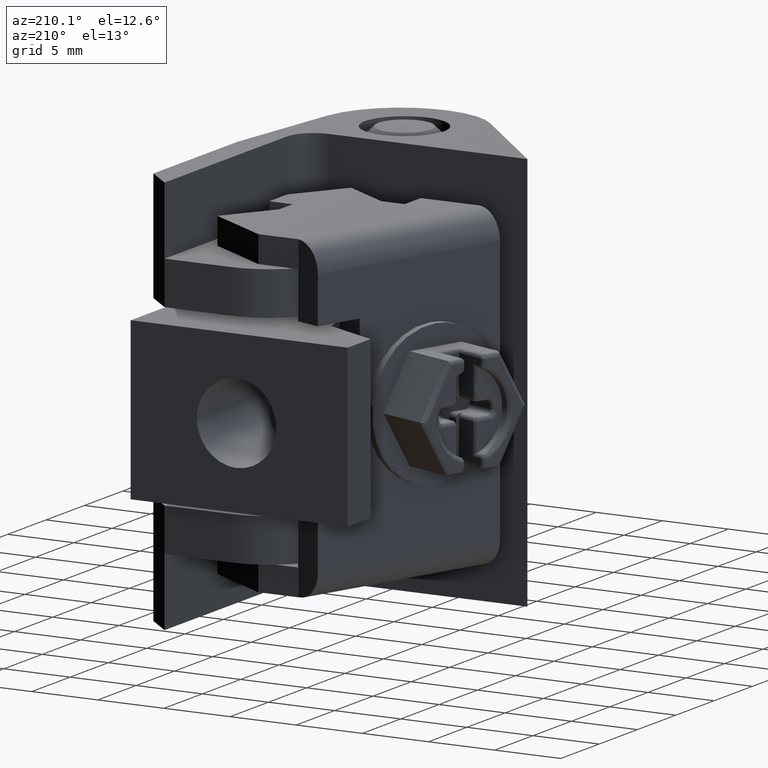
[diagram: clean part render]
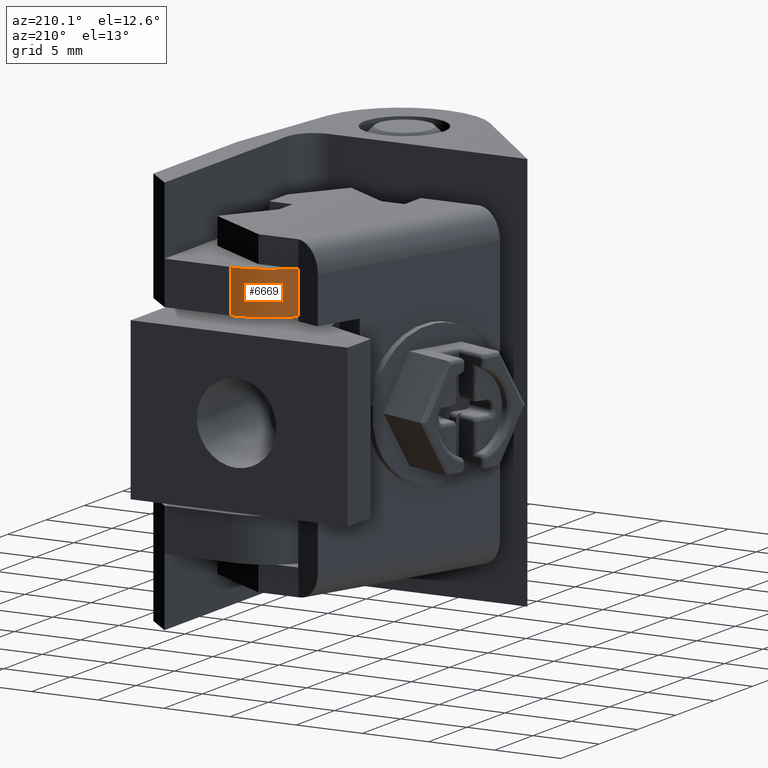
[diagram: same view with one face highlighted and labeled with its STEP entity id]
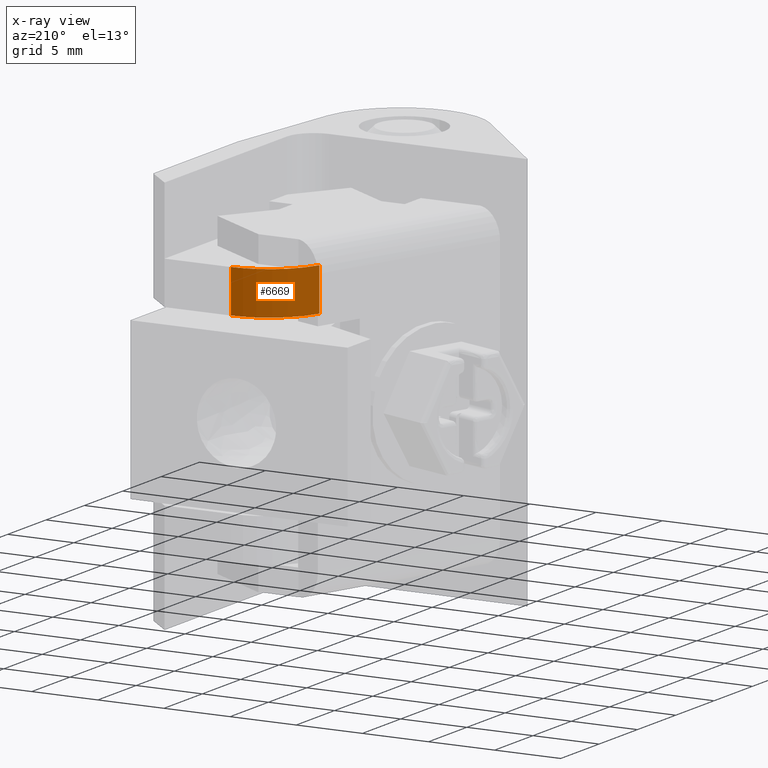
[diagram: x-ray of the same camera — body ghosted, the highlighted face saturated]
A machine part, auxiliary view. The second image highlights one B-rep face of the part: STEP entity #6669.
The next image is the same camera in x-ray: the body ghosted, the highlighted face saturated — about 0% of this face is hidden behind the body in this view.
In plain terms, the highlighted face is a freeform B-spline surface patch.
Its self-contained STEP definition (entity closure, byte-faithful):
#5887=CARTESIAN_POINT('',(-4.655184336387970,19.127841651629151,21.650001028321501));
#5888=VERTEX_POINT('',#5887);
#5894=CARTESIAN_POINT('',(0.072408776204796,22.500001068692601,21.650001028321501));
#5895=VERTEX_POINT('',#5894);
#5896=CARTESIAN_POINT('',(-4.655184336387967,19.127841651629151,21.650001028321501));
#5897=CARTESIAN_POINT('',(-3.494056755960073,22.500001068692601,21.650001028321498));
#5898=CARTESIAN_POINT('',(0.072408776204796,22.500001068692601,21.650001028321501));
#5906=(BOUNDED_CURVE()B_SPLINE_CURVE(2,(#5896,#5897,#5898),.UNSPECIFIED.,.F.,.U.)CURVE()GEOMETRIC_REPRESENTATION_ITEM()QUASI_UNIFORM_CURVE()RATIONAL_B_SPLINE_CURVE((1.0,0.814115516564174,1.0))REPRESENTATION_ITEM(''));
#5907=EDGE_CURVE('',#5888,#5895,#5906,.T.);
#6149=CARTESIAN_POINT('',(0.072408776204796,22.500001068692601,24.900000142493951));
#6150=VERTEX_POINT('',#6149);
#6156=CARTESIAN_POINT('',(-4.655184336387970,19.127841651629151,24.900000142493951));
#6157=VERTEX_POINT('',#6156);
#6158=CARTESIAN_POINT('',(-4.655184336387967,19.127841651629151,24.900000142493951));
#6159=CARTESIAN_POINT('',(-3.494056755960073,22.500001068692601,24.900000142493944));
#6160=CARTESIAN_POINT('',(0.072408776204796,22.500001068692601,24.900000142493951));
#6168=(BOUNDED_CURVE()B_SPLINE_CURVE(2,(#6158,#6159,#6160),.UNSPECIFIED.,.F.,.U.)CURVE()GEOMETRIC_REPRESENTATION_ITEM()QUASI_UNIFORM_CURVE()RATIONAL_B_SPLINE_CURVE((1.0,0.814115516564174,1.0))REPRESENTATION_ITEM(''));
#6169=EDGE_CURVE('',#6157,#6150,#6168,.T.);
#6631=CARTESIAN_POINT('',(-4.655184336387970,19.127841651629151,24.900000142493951));
#6632=CARTESIAN_POINT('',(-4.655184336387970,19.127841651629151,21.650001028321501));
#6633=QUASI_UNIFORM_CURVE('',1,(#6631,#6632),.UNSPECIFIED.,.F.,.U.);
#6634=EDGE_CURVE('',#6157,#5888,#6633,.T.);
#6645=CARTESIAN_POINT('',(0.203293523960860,22.498287693489001,24.981250120348260));
#6646=CARTESIAN_POINT('',(0.203293523960860,22.498287693489001,21.566719801020831));
#6647=CARTESIAN_POINT('',(-3.688575782686523,22.600199877910388,24.981250120348260));
#6648=CARTESIAN_POINT('',(-3.688575782686523,22.600199877910388,21.566719801020835));
#6649=CARTESIAN_POINT('',(-4.741322825670060,18.852032798277079,24.981250120348268));
#6650=CARTESIAN_POINT('',(-4.741322825670060,18.852032798277079,21.566719801020827));
#6658=(BOUNDED_SURFACE()B_SPLINE_SURFACE(1,2,((#6645,#6647,#6649),(#6646,#6648,#6650)),.UNSPECIFIED.,.F.,.F.,.U.)B_SPLINE_SURFACE_WITH_KNOTS((2,2),(3,3),(0.0,3.414530319327437),(0.0,6.868162002338658),.UNSPECIFIED.)GEOMETRIC_REPRESENTATION_ITEM()RATIONAL_B_SPLINE_SURFACE(((1.0,0.788576693832555,0.998871141289717),(1.0,0.788576693832555,0.998871141289717)))REPRESENTATION_ITEM('')SURFACE());
#6659=CARTESIAN_POINT('',(0.072408776204796,22.500001068692601,24.900000142493951));
#6660=CARTESIAN_POINT('',(0.072408776204796,22.500001068692601,21.650001028321501));
#6661=QUASI_UNIFORM_CURVE('',1,(#6659,#6660),.UNSPECIFIED.,.F.,.U.);
#6662=EDGE_CURVE('',#6150,#5895,#6661,.T.);
#6663=ORIENTED_EDGE('',*,*,#6662,.T.);
#6664=ORIENTED_EDGE('',*,*,#5907,.F.);
#6665=ORIENTED_EDGE('',*,*,#6634,.F.);
#6666=ORIENTED_EDGE('',*,*,#6169,.T.);
#6667=EDGE_LOOP('',(#6663,#6664,#6665,#6666));
#6668=FACE_OUTER_BOUND('',#6667,.T.);
#6669=ADVANCED_FACE('',(#6668),#6658,.T.);